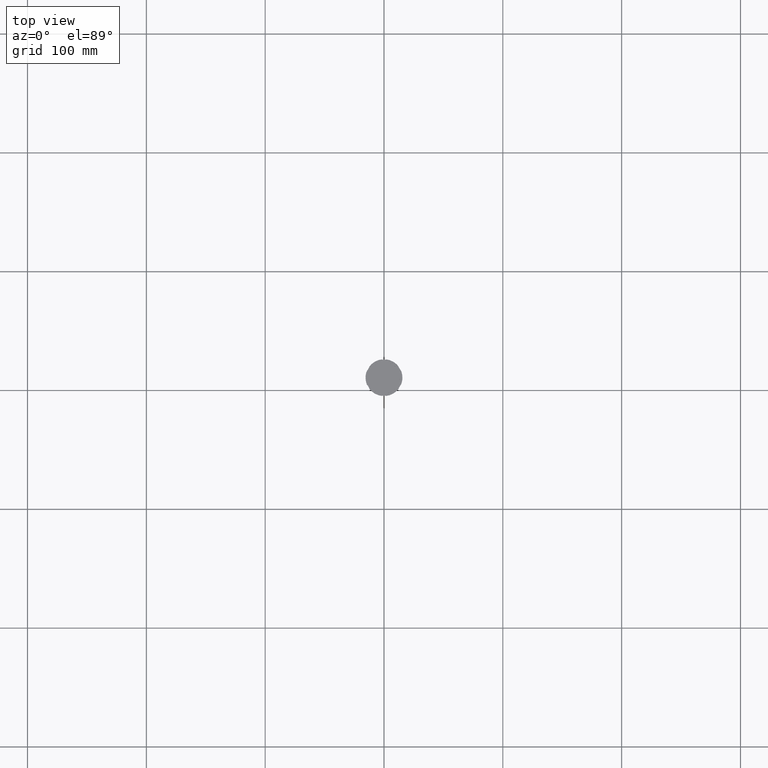
[diagram: clean part render]
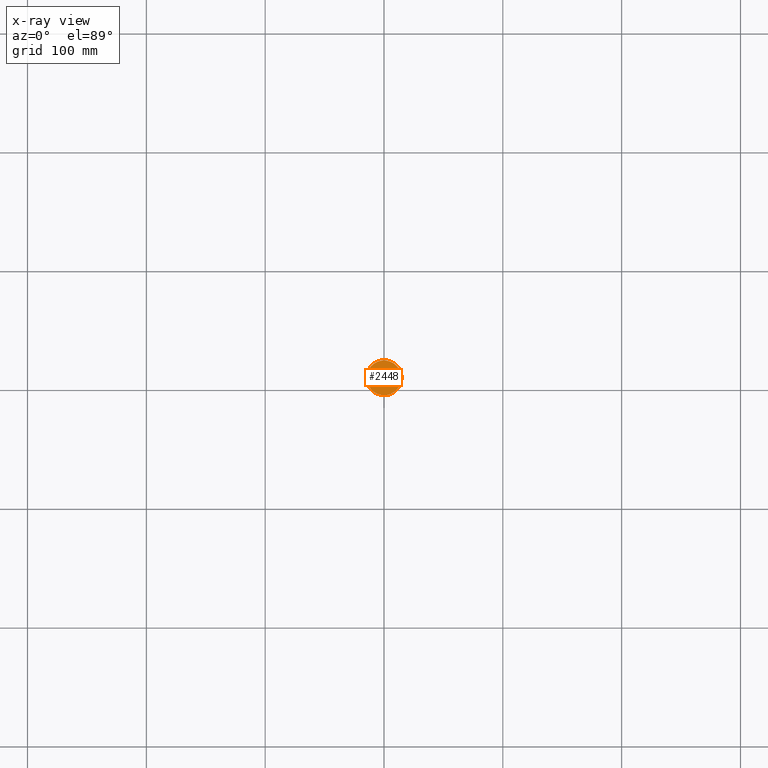
[diagram: x-ray — body ghosted, one internal face saturated and labeled with its STEP entity id]
A machine part, top view, then the same camera in x-ray: the body is ghosted and one INTERNAL B-rep face — a face not visible from any outside direction — is saturated and labeled: STEP entity #2448.
In plain terms, the highlighted planar face has unit normal (0, 0, -1).
Its self-contained STEP definition (entity closure, byte-faithful):
#209 = CARTESIAN_POINT ( 'NONE',  ( 0.000000000000000000, 0.000000000000000000, -12.00000000000000000 ) ) ;
#410 = AXIS2_PLACEMENT_3D ( 'NONE', #209, #1340, #2243 ) ;
#445 = CARTESIAN_POINT ( 'NONE',  ( 14.70000000000000107, 1.818600496733819553E-15, -12.00000000000000000 ) ) ;
#621 = DIRECTION ( 'NONE',  ( 0.000000000000000000, 0.000000000000000000, -1.000000000000000000 ) ) ;
#691 = VERTEX_POINT ( 'NONE', #1275 ) ;
#897 = CIRCLE ( 'NONE', #410, 14.70000000000000107 ) ;
#1082 = VERTEX_POINT ( 'NONE', #445 ) ;
#1186 = DIRECTION ( 'NONE',  ( -0.000000000000000000, -0.000000000000000000, 1.000000000000000000 ) ) ;
#1227 = CARTESIAN_POINT ( 'NONE',  ( 0.000000000000000000, 0.000000000000000000, -12.00000000000000000 ) ) ;
#1234 = AXIS2_PLACEMENT_3D ( 'NONE', #1227, #1186, #1393 ) ;
#1273 = DIRECTION ( 'NONE',  ( -1.000000000000000000, 0.000000000000000000, -0.000000000000000000 ) ) ;
#1275 = CARTESIAN_POINT ( 'NONE',  ( -14.70000000000000107, 0.000000000000000000, -12.00000000000000000 ) ) ;
#1300 = CARTESIAN_POINT ( 'NONE',  ( 0.000000000000000000, 0.000000000000000000, -12.00000000000000000 ) ) ;
#1340 = DIRECTION ( 'NONE',  ( -0.000000000000000000, -0.000000000000000000, 1.000000000000000000 ) ) ;
#1393 = DIRECTION ( 'NONE',  ( -1.000000000000000000, 0.000000000000000000, 0.000000000000000000 ) ) ;
#1452 = PLANE ( 'NONE',  #1879 ) ;
#1875 = ORIENTED_EDGE ( 'NONE', *, *, #2671, .T. ) ;
#1879 = AXIS2_PLACEMENT_3D ( 'NONE', #1300, #621, #1273 ) ;
#2066 = CIRCLE ( 'NONE', #1234, 14.70000000000000107 ) ;
#2243 = DIRECTION ( 'NONE',  ( -1.000000000000000000, 0.000000000000000000, 0.000000000000000000 ) ) ;
#2262 = EDGE_LOOP ( 'NONE', ( #1875, #2510 ) ) ;
#2392 = EDGE_CURVE ( 'NONE', #1082, #691, #2066, .T. ) ;
#2415 = FACE_OUTER_BOUND ( 'NONE', #2262, .T. ) ;
#2448 = ADVANCED_FACE ( 'NONE', ( #2415 ), #1452, .F. ) ;
#2510 = ORIENTED_EDGE ( 'NONE', *, *, #2392, .T. ) ;
#2671 = EDGE_CURVE ( 'NONE', #691, #1082, #897, .T. ) ;